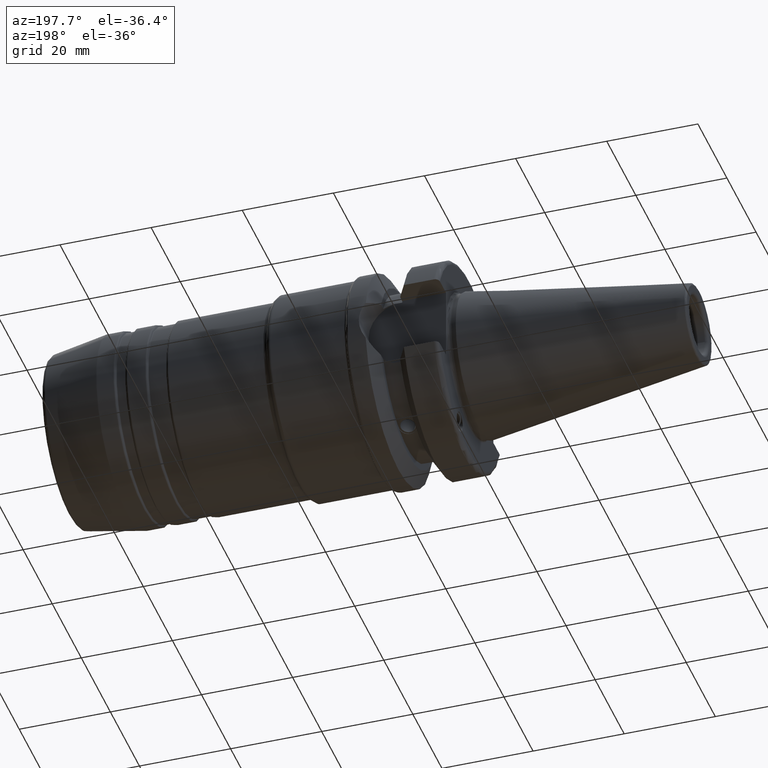
[diagram: clean part render]
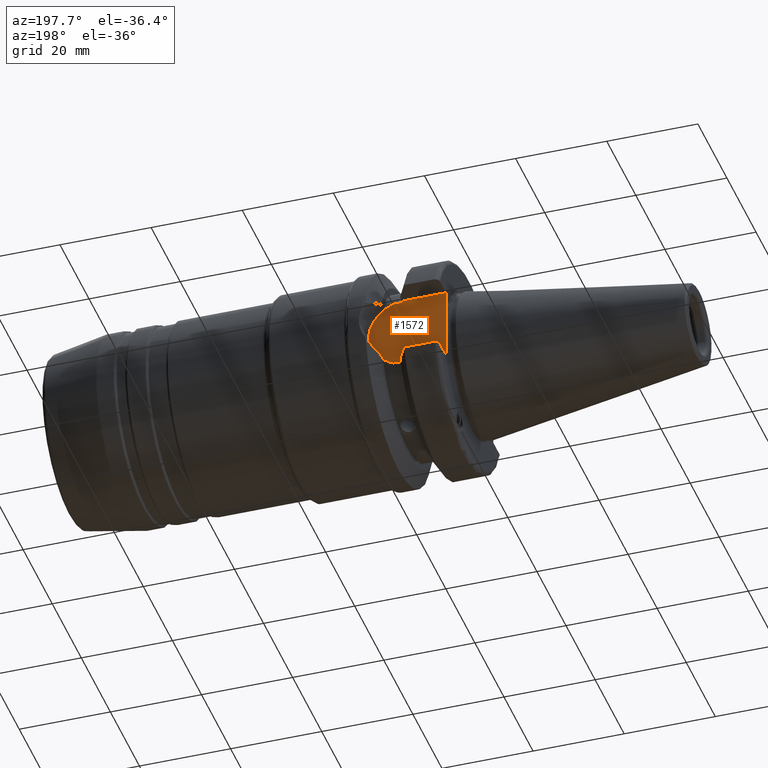
[diagram: same view with one face highlighted and labeled with its STEP entity id]
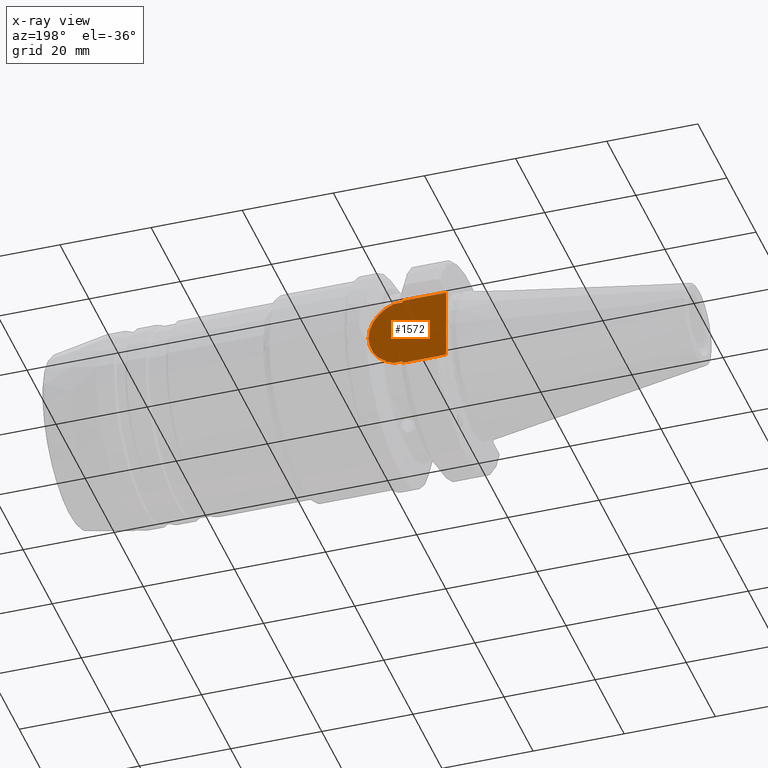
[diagram: x-ray of the same camera — body ghosted, the highlighted face saturated]
A machine part, auxiliary view. The second image highlights one B-rep face of the part: STEP entity #1572.
The next image is the same camera in x-ray: the body ghosted, the highlighted face saturated — about 0% of this face is hidden behind the body in this view.
In plain terms, the highlighted planar face has unit normal (0, 1, 0).
Its self-contained STEP definition (entity closure, byte-faithful):
#96=PLANE('',#1798);
#143=LINE('',#2690,#218);
#149=LINE('',#2805,#224);
#155=LINE('',#2862,#230);
#177=LINE('',#3008,#252);
#183=LINE('',#3066,#258);
#185=LINE('',#3069,#260);
#186=LINE('',#3071,#261);
#218=VECTOR('',#2077,10.);
#224=VECTOR('',#2135,10.);
#230=VECTOR('',#2167,10.);
#252=VECTOR('',#2241,10.);
#258=VECTOR('',#2271,10.);
#260=VECTOR('',#2275,10.);
#261=VECTOR('',#2278,10.);
#384=FACE_OUTER_BOUND('',#488,.T.);
#488=EDGE_LOOP('',(#1389,#1390,#1391,#1392,#1393,#1394,#1395,#1396,#1397,
#1398));
#593=CIRCLE('',#1791,8.05);
#594=CIRCLE('',#1793,8.05);
#595=CIRCLE('',#1795,8.05);
#675=VERTEX_POINT('',#2682);
#676=VERTEX_POINT('',#2689);
#695=VERTEX_POINT('',#2802);
#696=VERTEX_POINT('',#2804);
#707=VERTEX_POINT('',#2859);
#708=VERTEX_POINT('',#2861);
#738=VERTEX_POINT('',#3006);
#742=VERTEX_POINT('',#3036);
#744=VERTEX_POINT('',#3039);
#746=VERTEX_POINT('',#3048);
#861=EDGE_CURVE('',#675,#676,#143,.T.);
#890=EDGE_CURVE('',#695,#696,#149,.T.);
#906=EDGE_CURVE('',#707,#708,#155,.T.);
#953=EDGE_CURVE('',#738,#695,#177,.T.);
#961=EDGE_CURVE('',#744,#742,#593,.T.);
#965=EDGE_CURVE('',#738,#746,#594,.T.);
#966=EDGE_CURVE('',#675,#696,#595,.T.);
#970=EDGE_CURVE('',#707,#744,#183,.T.);
#972=EDGE_CURVE('',#746,#708,#185,.T.);
#973=EDGE_CURVE('',#676,#742,#186,.T.);
#1389=ORIENTED_EDGE('',*,*,#890,.F.);
#1390=ORIENTED_EDGE('',*,*,#953,.F.);
#1391=ORIENTED_EDGE('',*,*,#965,.T.);
#1392=ORIENTED_EDGE('',*,*,#972,.T.);
#1393=ORIENTED_EDGE('',*,*,#906,.F.);
#1394=ORIENTED_EDGE('',*,*,#970,.T.);
#1395=ORIENTED_EDGE('',*,*,#961,.T.);
#1396=ORIENTED_EDGE('',*,*,#973,.F.);
#1397=ORIENTED_EDGE('',*,*,#861,.F.);
#1398=ORIENTED_EDGE('',*,*,#966,.T.);
#1572=ADVANCED_FACE('',(#384),#96,.T.);
#1791=AXIS2_PLACEMENT_3D('',#3040,#2256,#2257);
#1793=AXIS2_PLACEMENT_3D('',#3050,#2262,#2263);
#1795=AXIS2_PLACEMENT_3D('',#3052,#2266,#2267);
#1798=AXIS2_PLACEMENT_3D('',#3070,#2276,#2277);
#2077=DIRECTION('',(-1.,-1.62798202122572E-21,0.));
#2135=DIRECTION('',(1.,1.62798202122572E-21,0.));
#2167=DIRECTION('',(0.,0.,-1.));
#2241=DIRECTION('',(0.,0.,1.));
#2256=DIRECTION('center_axis',(0.,1.,0.));
#2257=DIRECTION('ref_axis',(0.,0.,1.));
#2262=DIRECTION('center_axis',(0.,1.,0.));
#2263=DIRECTION('ref_axis',(0.,0.,1.));
#2266=DIRECTION('center_axis',(0.,1.,0.));
#2267=DIRECTION('ref_axis',(0.,0.,1.));
#2271=DIRECTION('',(1.,0.,0.));
#2275=DIRECTION('',(-1.,0.,-4.96189061284986E-16));
#2276=DIRECTION('center_axis',(0.,1.,0.));
#2277=DIRECTION('ref_axis',(0.,0.,1.));
#2278=DIRECTION('',(0.,0.,1.));
#2682=CARTESIAN_POINT('',(13.4980384612482,16.3,7.636098480245));
#2689=CARTESIAN_POINT('',(11.6,16.3,7.636098480245));
#2690=CARTESIAN_POINT('',(13.6,16.3,7.636098480245));
#2802=CARTESIAN_POINT('',(11.6,16.3,-7.636098480245));
#2804=CARTESIAN_POINT('',(13.4980384612482,16.3,-7.636098480245));
#2805=CARTESIAN_POINT('',(13.6,16.3,-7.636098480245));
#2859=CARTESIAN_POINT('',(1.99999999999999,16.3,8.05));
#2861=CARTESIAN_POINT('',(1.99999999999999,16.3,-8.05));
#2862=CARTESIAN_POINT('',(1.99999999999999,16.3,0.));
#3006=CARTESIAN_POINT('',(11.6,16.3,-8.02371485036701));
#3008=CARTESIAN_POINT('',(11.6,16.3,0.));
#3036=CARTESIAN_POINT('',(11.6,16.3,8.02371485036701));
#3039=CARTESIAN_POINT('',(10.95,16.3,8.05));
#3040=CARTESIAN_POINT('Origin',(10.95,16.3,0.));
#3048=CARTESIAN_POINT('',(10.95,16.3,-8.05));
#3050=CARTESIAN_POINT('Origin',(10.95,16.3,0.));
#3052=CARTESIAN_POINT('Origin',(10.95,16.3,0.));
#3066=CARTESIAN_POINT('',(1.99999999999999,16.3,8.05));
#3069=CARTESIAN_POINT('',(10.95,16.3,-8.05));
#3070=CARTESIAN_POINT('Origin',(10.5,16.3,0.));
#3071=CARTESIAN_POINT('',(11.6,16.3,0.));